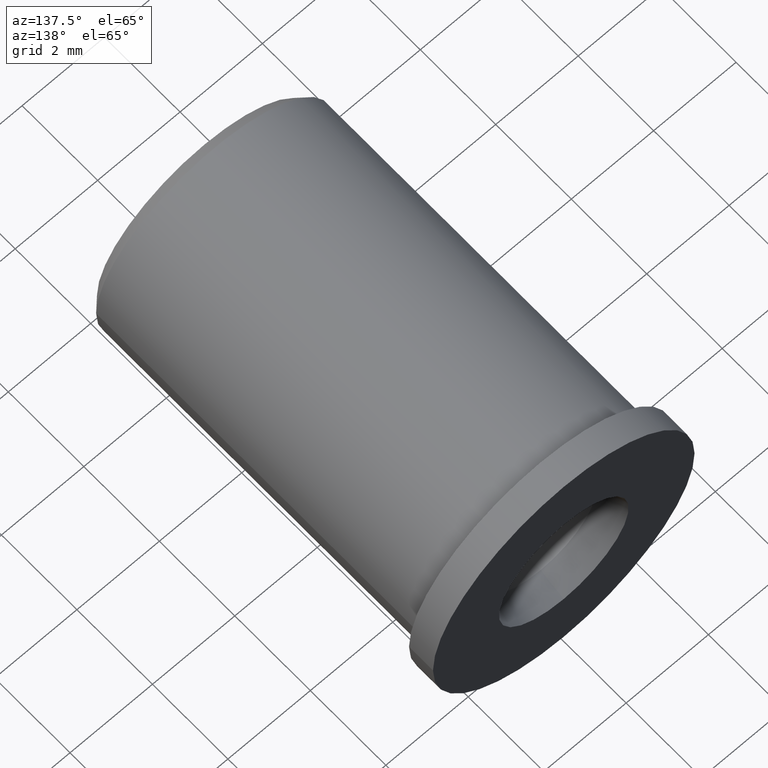
[diagram: clean part render]
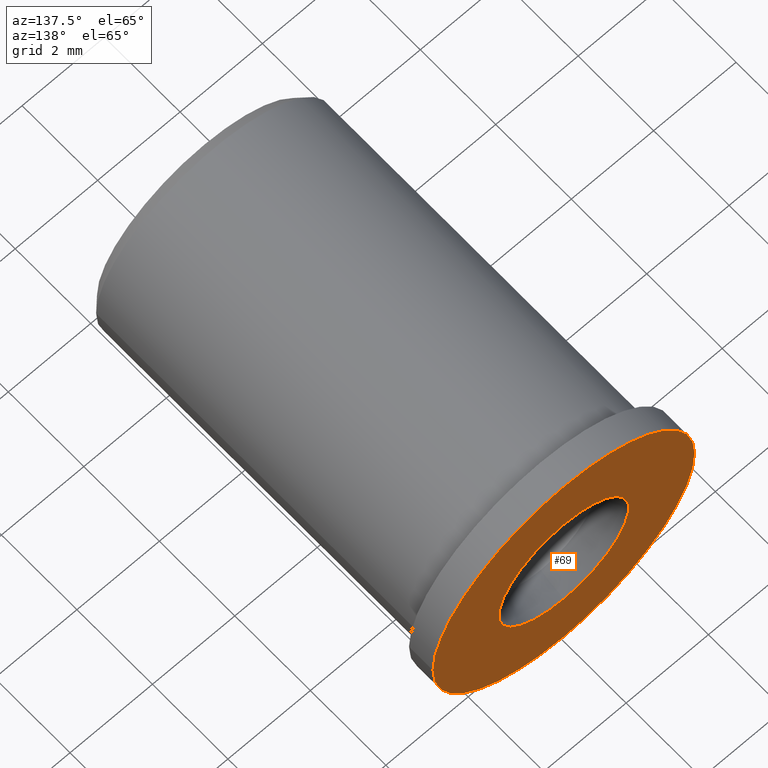
[diagram: same view with one face highlighted and labeled with its STEP entity id]
A machine part, auxiliary view. The second image highlights one B-rep face of the part: STEP entity #69.
In plain terms, the highlighted planar face has unit normal (-0, 1, 0).
Its self-contained STEP definition (entity closure, byte-faithful):
#33 = VERTEX_POINT ( 'NONE', #190 ) ;
#35 = EDGE_CURVE ( 'NONE', #33, #36, #189, .T. ) ;
#36 = VERTEX_POINT ( 'NONE', #251 ) ;
#69 = ADVANCED_FACE ( 'NONE', ( #302, #301 ), #300, .T. ) ;
#70 = EDGE_LOOP ( 'NONE', ( #71, #73 ) ) ;
#71 = ORIENTED_EDGE ( 'NONE', *, *, #72, .F. ) ;
#72 = EDGE_CURVE ( 'NONE', #36, #33, #295, .T. ) ;
#73 = ORIENTED_EDGE ( 'NONE', *, *, #35, .F. ) ;
#74 = EDGE_LOOP ( 'NONE', ( #75, #76 ) ) ;
#75 = ORIENTED_EDGE ( 'NONE', *, *, #88, .F. ) ;
#76 = ORIENTED_EDGE ( 'NONE', *, *, #77, .F. ) ;
#77 = EDGE_CURVE ( 'NONE', #90, #89, #290, .T. ) ;
#88 = EDGE_CURVE ( 'NONE', #89, #90, #334, .T. ) ;
#89 = VERTEX_POINT ( 'NONE', #330 ) ;
#90 = VERTEX_POINT ( 'NONE', #329 ) ;
#189 = CIRCLE ( 'NONE', #255, 0.06199999999999997900 ) ;
#190 = CARTESIAN_POINT ( 'NONE',  ( -8.631839885867890400E-016, 0.2500000000000006700, -0.06199999999999997900 ) ) ;
#251 = CARTESIAN_POINT ( 'NONE',  ( -8.707765479804877300E-016, 0.2500000000000006700, 0.06199999999999997900 ) ) ;
#252 = DIRECTION ( 'NONE',  ( 0.0000000000000000000, 0.0000000000000000000, 1.000000000000000000 ) ) ;
#253 = DIRECTION ( 'NONE',  ( 0.0000000000000000000, 1.000000000000000000, 0.0000000000000000000 ) ) ;
#254 = CARTESIAN_POINT ( 'NONE',  ( -8.707765479804877300E-016, 0.2500000000000006700, 0.0000000000000000000 ) ) ;
#255 = AXIS2_PLACEMENT_3D ( 'NONE', #254, #253, #252 ) ;
#286 = DIRECTION ( 'NONE',  ( 1.000000000000000000, 3.551402391763541600E-015, 0.0000000000000000000 ) ) ;
#287 = DIRECTION ( 'NONE',  ( 3.483106191921942700E-015, -1.000000000000000000, 0.0000000000000000000 ) ) ;
#288 = CARTESIAN_POINT ( 'NONE',  ( 1.229331597148917000E-015, 0.2500000000000010500, 0.0000000000000000000 ) ) ;
#289 = AXIS2_PLACEMENT_3D ( 'NONE', #288, #287, #286 ) ;
#290 = CIRCLE ( 'NONE', #289, 0.1250000000000000300 ) ;
#291 = DIRECTION ( 'NONE',  ( 0.0000000000000000000, 0.0000000000000000000, 1.000000000000000000 ) ) ;
#292 = DIRECTION ( 'NONE',  ( 0.0000000000000000000, 1.000000000000000000, 0.0000000000000000000 ) ) ;
#293 = CARTESIAN_POINT ( 'NONE',  ( -8.707765479804877300E-016, 0.2500000000000006700, 0.0000000000000000000 ) ) ;
#294 = AXIS2_PLACEMENT_3D ( 'NONE', #293, #292, #291 ) ;
#295 = CIRCLE ( 'NONE', #294, 0.06199999999999997900 ) ;
#296 = DIRECTION ( 'NONE',  ( -1.000000000000000000, -3.483106191921942300E-015, 0.0000000000000000000 ) ) ;
#297 = DIRECTION ( 'NONE',  ( -3.483106191921942300E-015, 1.000000000000000000, 0.0000000000000000000 ) ) ;
#298 = CARTESIAN_POINT ( 'NONE',  ( 3.179099014113196600E-015, 0.2500000000000006100, 0.0000000000000000000 ) ) ;
#299 = AXIS2_PLACEMENT_3D ( 'NONE', #298, #297, #296 ) ;
#300 = PLANE ( 'NONE',  #299 ) ;
#301 = FACE_OUTER_BOUND ( 'NONE', #74, .T. ) ;
#302 = FACE_BOUND ( 'NONE', #70, .T. ) ;
#329 = CARTESIAN_POINT ( 'NONE',  ( -0.1249999999999988100, 0.2500000000000006100, 1.530757942277972800E-017 ) ) ;
#330 = CARTESIAN_POINT ( 'NONE',  ( 0.1250000000000012500, 0.2500000000000015000, 0.0000000000000000000 ) ) ;
#331 = DIRECTION ( 'NONE',  ( 1.000000000000000000, 3.551402391763541600E-015, 0.0000000000000000000 ) ) ;
#332 = DIRECTION ( 'NONE',  ( 3.483106191921942700E-015, -1.000000000000000000, 0.0000000000000000000 ) ) ;
#333 = AXIS2_PLACEMENT_3D ( 'NONE', #340, #332, #331 ) ;
#334 = CIRCLE ( 'NONE', #333, 0.1250000000000000300 ) ;
#340 = CARTESIAN_POINT ( 'NONE',  ( 1.229331597148917000E-015, 0.2500000000000010500, 0.0000000000000000000 ) ) ;